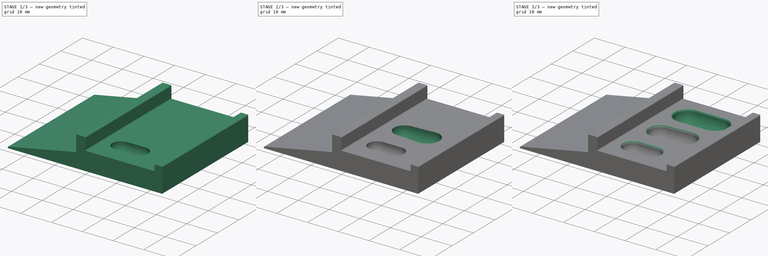
[diagram: build sequence overview — one tinted view per stage of 3, left to right]
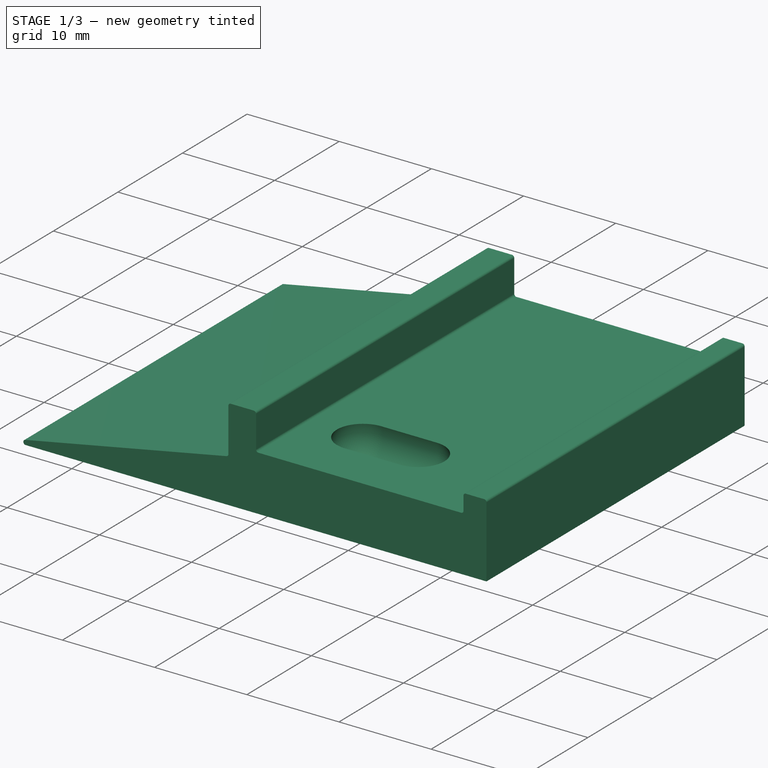
[diagram: stage 1 of 3 — iso view after this stage's code; geometry added in this stage tinted green]
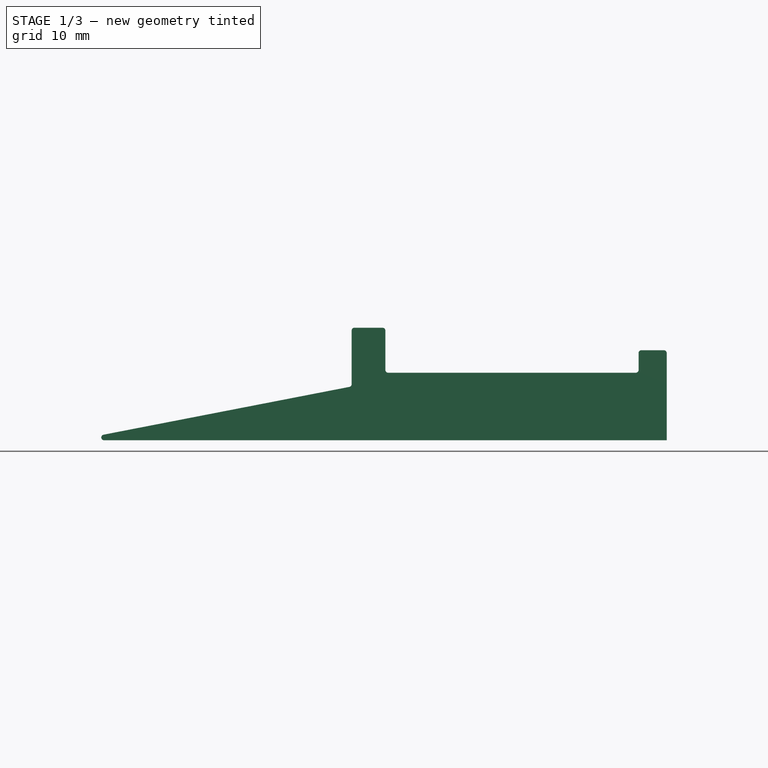
[diagram: stage 1 of 3 — front view after this stage's code; geometry added in this stage tinted green]
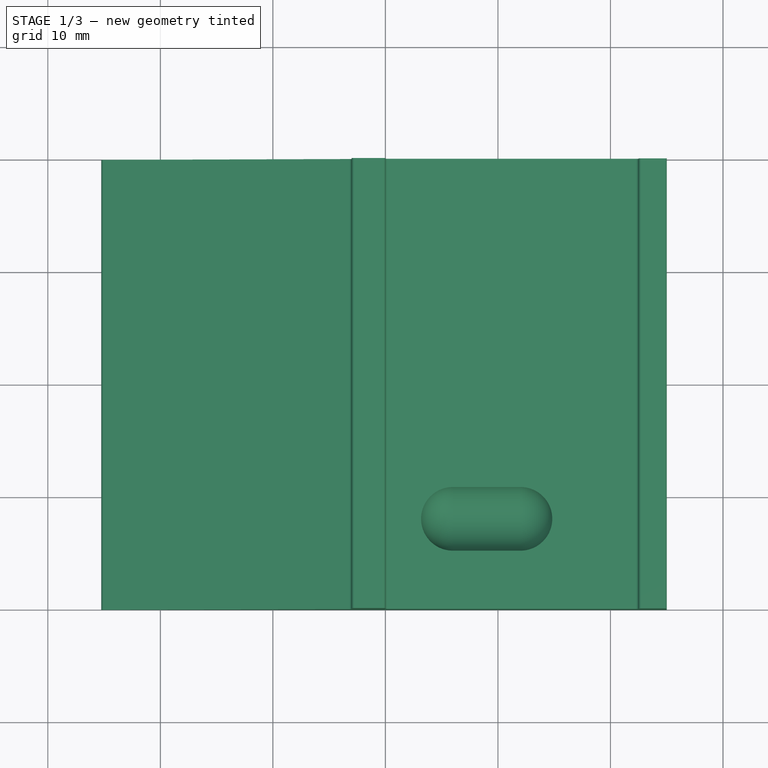
[diagram: stage 1 of 3 — top view after this stage's code; geometry added in this stage tinted green]
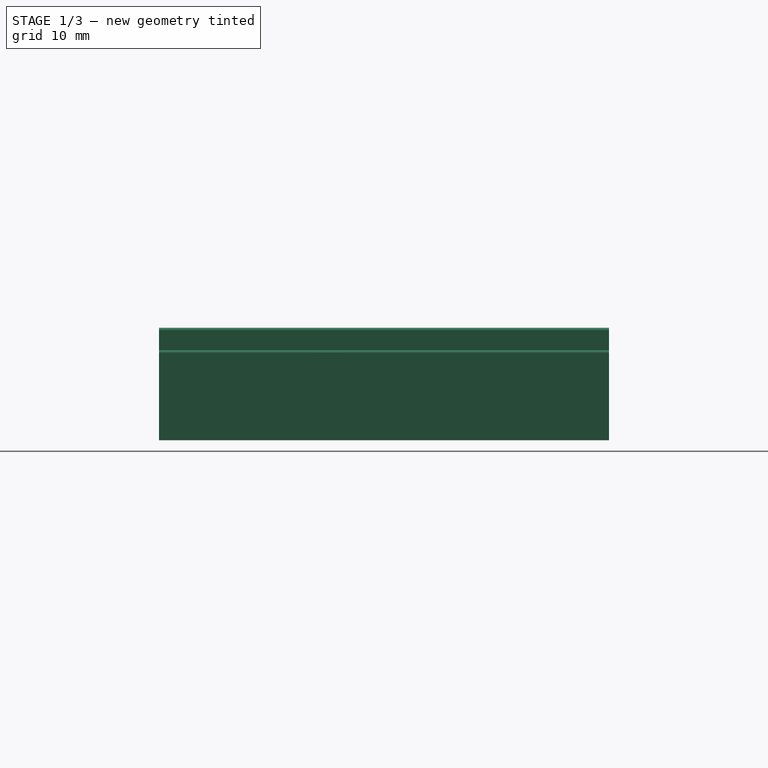
[diagram: stage 1 of 3 — right view after this stage's code; geometry added in this stage tinted green]
FCSTD DOCUMENT  (FreeCAD 1.1R44874 (Git))
Label: Sarcophagus_platform_2
Comment: Sarcophagi in different sizes for different animals. After mounting this directly on a cooling plate (eg a peltier element) it can be used to sort flies on the flat surface and then move them to the s... (+121 chars)
License: Creative Commons Attribution-NonCommercial-ShareAlike
LicenseURL: http://creativecommons.org/licenses/by-nc-sa/4.0/
objects: Sketcher::SketchObject×4, PartDesign::Line×3, PartDesign::Groove×3, App::Point×2, PartDesign::Pad×1, Spreadsheet::Sheet×1, PartDesign::Plane×1, PartDesign::Fillet×1, PartDesign::Body×1, App::Part×1, App::DocumentObjectGroup×1
note: 28 computed .brp shape members not serialized (recipe doc carries the construction recipe); baked Part::Feature solids carry a one-line shape summary decoded from their .brp

FEATURE [Sketcher::SketchObject] Sketch
  ArcFitTolerance = 0
  AttachmentSupport = -> [XZ_Plane]
  ExternalTypes = [0]
  FullyConstrained = true
  MakeInternals = false
  MapMode = 5
  Placement = pos=(0,0,0) rot=(1,0,0;1.5708rad)
  _ExternalGeoVersion = 0
  expr: Constraints[12] = <<Definition>>.length
  expr: Constraints[33] = <<Definition>>.thickness
  sketch-geometry (17):
    g0: LineSegment StartX=25 StartY=0 StartZ=0 EndX=-25 EndY=0 EndZ=0
    g1: LineSegment StartX=-25.0477 StartY=0.495407 StartZ=0 EndX=-3.2023 EndY=4.74172 EndZ=0
    g2: LineSegment StartX=-3 StartY=4.98713 StartZ=0 EndX=-3 EndY=9.75 EndZ=0
    g3: LineSegment StartX=-2.75 StartY=10 StartZ=0 EndX=-0.25 EndY=10 EndZ=0
    g4: LineSegment StartX=0 StartY=9.75 StartZ=0 EndX=0 EndY=6.25 EndZ=0
    g5: LineSegment StartX=0.25 StartY=6 StartZ=0 EndX=22.25 EndY=6 EndZ=0
    g6: LineSegment StartX=22.5 StartY=6.25 StartZ=0 EndX=22.5 EndY=7.75 EndZ=0
    g7: LineSegment StartX=22.75 StartY=8 StartZ=0 EndX=24.75 EndY=8 EndZ=0
    g8: LineSegment StartX=25 StartY=7.75 StartZ=0 EndX=25 EndY=0 EndZ=0
    g9: ArcOfCircle CenterX=-25 CenterY=0.25 CenterZ=0 NormalX=0 NormalY=0 NormalZ=1 AngleXU=0 Radius=0.25 StartAngle=1.76278 EndAngle=4.71239
    g10: ArcOfCircle CenterX=-3.25 CenterY=4.98713 CenterZ=0 NormalX=0 NormalY=0 NormalZ=1 AngleXU=0 Radius=0.25 StartAngle=4.90438 EndAngle=6.28319
    g11: ArcOfCircle CenterX=-2.75 CenterY=9.75 CenterZ=0 NormalX=0 NormalY=0 NormalZ=1 AngleXU=0 Radius=0.25 StartAngle=1.5708 EndAngle=3.14159
    g12: ArcOfCircle CenterX=-0.25 CenterY=9.75 CenterZ=0 NormalX=0 NormalY=0 NormalZ=1 AngleXU=0 Radius=0.25 StartAngle=1e-15 EndAngle=1.5708
    g13: ArcOfCircle CenterX=0.25 CenterY=6.25 CenterZ=0 NormalX=0 NormalY=0 NormalZ=1 AngleXU=0 Radius=0.25 StartAngle=3.14159 EndAngle=4.71239
    g14: ArcOfCircle CenterX=22.25 CenterY=6.25 CenterZ=0 NormalX=0 NormalY=0 NormalZ=1 AngleXU=0 Radius=0.25 StartAngle=4.71239 EndAngle=6.28319
    g15: ArcOfCircle CenterX=22.75 CenterY=7.75 CenterZ=0 NormalX=0 NormalY=0 NormalZ=1 AngleXU=0 Radius=0.25 StartAngle=1.5708 EndAngle=3.14159
    g16: ArcOfCircle CenterX=24.75 CenterY=7.75 CenterZ=0 NormalX=0 NormalY=0 NormalZ=1 AngleXU=0 Radius=0.25 StartAngle=9e-16 EndAngle=1.5708
  constraints (43):
    c: PointOnObject(g0,g-1)
    c: Vertical(g2)
    c: Horizontal(g3)
    c: Vertical(g4)
    c: Horizontal(g5)
    c: Vertical(g6)
    c: Horizontal(g7)
    c: Coincident(g8,g0)
    c: Vertical(g8)
    c: Tangent(g1,g9) = 1.5708
    c: Tangent(g0,g9) = 1.5708
    c: Diameter(g9) = 0.5
    c: DistanceX(g0,g0) = 50
    c: Tangent(g1,g10) = -1.5708
    c: Tangent(g2,g10) = -1.5708
    c: Diameter(g10) = 0.5
    c: Angle(g1) = 0.191986
    c: Tangent(g2,g11) = 1.5708
    c: Tangent(g3,g11) = 1.5708
    c: Tangent(g3,g12) = 1.5708
    c: Tangent(g4,g12) = 1.5708
    c: DistanceX(g2,g4) = 3
    c: Tangent(g4,g13) = -1.5708
    c: Tangent(g5,g13) = -1.5708
    c: DistanceY(g5,g3) = 4
    c: Tangent(g5,g14) = -1.5708
    c: Tangent(g6,g14) = -1.5708
    c: Tangent(g6,g15) = 1.5708
    c: Tangent(g7,g15) = 1.5708
    c: Tangent(g7,g16) = 1.5708
    c: Tangent(g8,g16) = 1.5708
    c: DistanceX(g6,g8) = 2.5
    c: DistanceY(g5,g7) = 2
    c: DistanceY(g0,g5) = 6
    c: Vertical(g4,g-1)
    c: Diameter(g11) = 0.5
    c: Diameter(g12) = 0.5
    c: Diameter(g13) = 0.5
    c: Diameter(g14) = 0.5
    c: Equal(g15,g16)
    c: Diameter(g15) = 0.5
    c: DistanceX(g-1,g0) = 25
    c: PointOnObject(g0,g-1)
FEATURE [PartDesign::Pad] Pad
  Direction = (0,-1,-2e-16)
  Length = 40
  Length2 = 100
  Placement = pos=(0,0,0) rot=(1,0,0;1.5708rad)
  Profile = -> Sketch
  ReferenceAxis = -> Sketch [N_Axis]
  SideType = 2
  Suppressed = false
  Type = 0
  Type2 = 0
  expr: Length = <<Definition>>.width
FEATURE [Spreadsheet::Sheet] Spreadsheet  label="Definition"
  cells = A1='Thickness; B1(thickness)=6; A2='Width; B2(width)=40; A3='Length; B3(length)=50; A4='Sarcophagus 1 length; B4(sarcophagus01_length)=12; A5='Sarcophagus 1 width; B5(sarcophagus01_width)=6; A6='Sarcophagus 2 length; B6(sarcophagus2_length)=15; A7='Sarcophagus 2 upper width; B7(sarcophagus2_uwidth)=7; A8='Sarcophagus 2 lower width; B8(sarcophagus2_lwidth)=8; A9='Sarcophagus 3 length; B9(sarcophagus3_length)=17; A10='Sarcophagus 3 width; B10(sarcophagus3_width)=8; A12='Version; B12=0.2
FEATURE [PartDesign::Plane] DatumPlane  label="Sarcophagi_plane"
  AttachmentOffset = pos=(0,0,5) rot=(0,0,1;0rad)
  AttachmentSupport = -> [XY_Plane]
  Length = 60.2737
  MapMode = 5
  Placement = pos=(0,0,5) rot=(0,0,1;0rad)
  ResizeMode = 0
  Width = 60.0249
  expr: .AttachmentOffset.Base.z = <<Definition>>.thickness - 1
FEATURE [Sketcher::SketchObject] Sketch001  label="Sarcophagus01_sketch"
  ArcFitTolerance = 0
  AttachmentSupport = -> [DatumPlane]
  ExternalTypes = [0]
  FullyConstrained = true
  MakeInternals = false
  MapMode = 5
  Placement = pos=(0,0,5) rot=(0,0,1;0rad)
  _ExternalGeoVersion = 0
  expr: Constraints[11] = <<Definition>>.width / 4 + 2
  expr: Constraints[8] = Spreadsheet.sarcophagus01_length
  expr: Constraints[9] = Spreadsheet.sarcophagus01_width / 2
  sketch-geometry (4):
    g0: LineSegment StartX=12 StartY=-9 StartZ=0 EndX=6 EndY=-9 EndZ=0
    g1: ArcOfCircle CenterX=12 CenterY=-12 CenterZ=0 NormalX=0 NormalY=0 NormalZ=1 AngleXU=0 Radius=3 StartAngle=0 EndAngle=1.5708
    g2: ArcOfCircle CenterX=6 CenterY=-12 CenterZ=0 NormalX=0 NormalY=0 NormalZ=1 AngleXU=0 Radius=3 StartAngle=1.5708 EndAngle=3.14159
    g3: LineSegment StartX=3 StartY=-12 StartZ=0 EndX=15 EndY=-12 EndZ=0
  constraints (12):
    c: Tangent(g1,g0) = -1.5708
    c: Tangent(g0,g2) = -1.5708
    c: Coincident(g3,g2)
    c: Coincident(g3,g1)
    c: Horizontal(g3)
    c: PointOnObject(g1,g3)
    c: PointOnObject(g2,g3)
    c: Parallel(g0,g3)
    c: Distance(g2,g1) = 12
    c: Distance(g0,g2) = 3
    c: DistanceX(g-1,g2) = 3
    c: DistanceY(g2,g-1) = 12
FEATURE [PartDesign::Line] DatumLine001  label="Sarcophagus01_center"
  AttacherType = Attacher::AttachEngineLine
  AttachmentSupport = -> [Sketch001]
  Length = 20
  MapMode = 29
  Placement = pos=(0,-12,5) rot=(0.57735,0.57735,0.57735;2.0944rad)
  ResizeMode = 0
FEATURE [PartDesign::Groove] Groove  label="Sarcophagus01"
  Angle = 360
  Angle2 = 0
  Axis = (1,0,0)
  Base = (0,-12,5)
  BaseFeature = -> Pad
  Placement = pos=(0,0,0) rot=(1,0,0;1.5708rad)
  Profile = -> Sketch001
  ReferenceAxis = -> DatumLine001
  Suppressed = false
  Type = 0
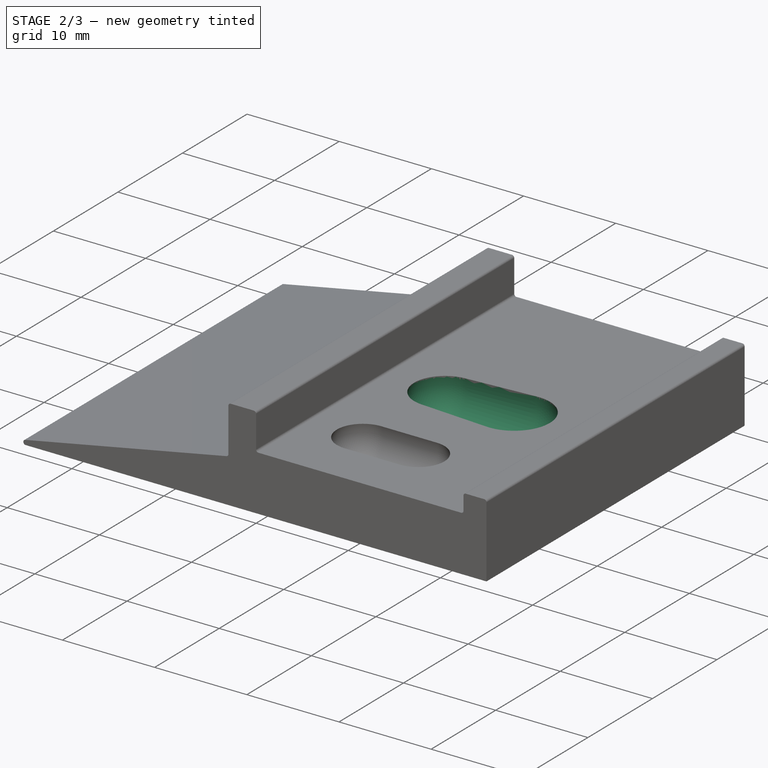
[diagram: stage 2 of 3 — iso view after this stage's code; geometry added in this stage tinted green]
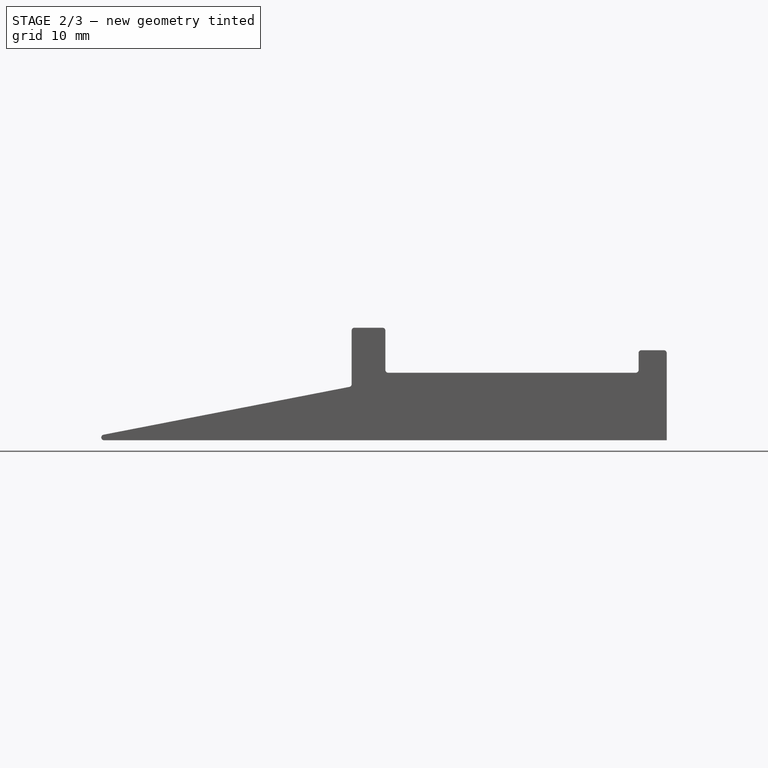
[diagram: stage 2 of 3 — front view after this stage's code; geometry added in this stage tinted green]
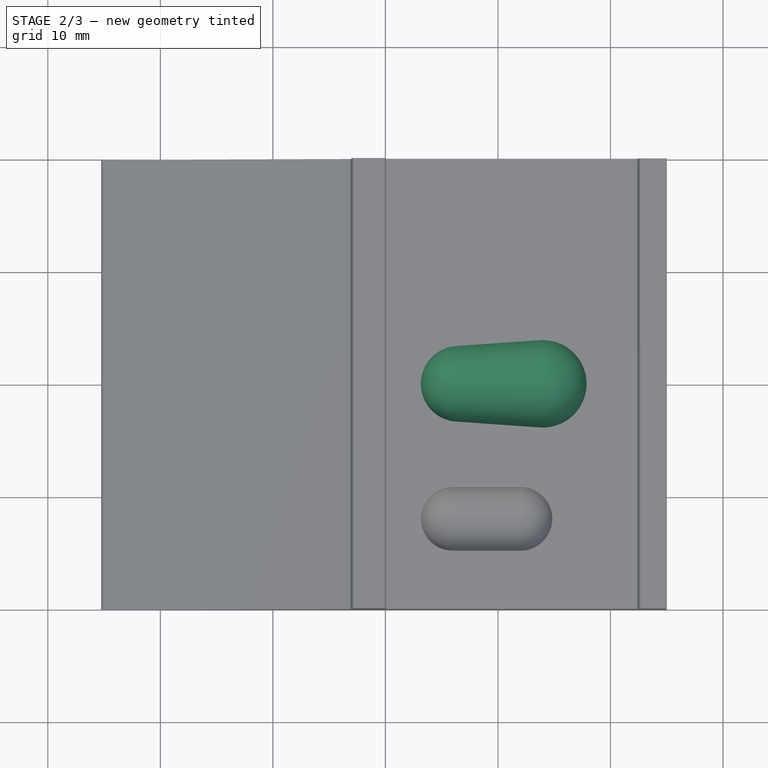
[diagram: stage 2 of 3 — top view after this stage's code; geometry added in this stage tinted green]
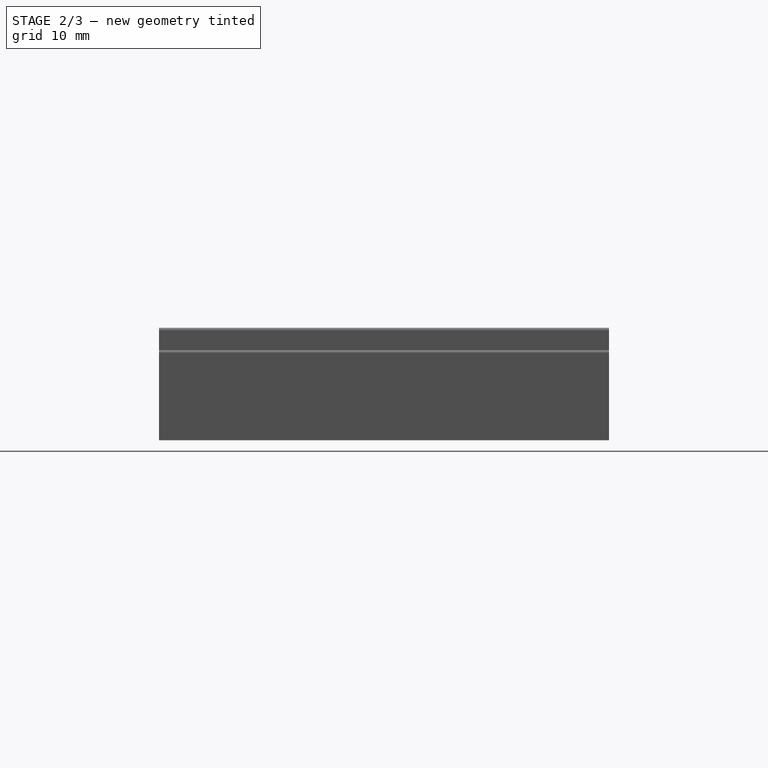
[diagram: stage 2 of 3 — right view after this stage's code; geometry added in this stage tinted green]
FEATURE [Sketcher::SketchObject] Sketch002  label="Sarcophagus02_sketch"
  ArcFitTolerance = 0
  AttachmentSupport = -> [DatumPlane]
  ExternalTypes = [0]
  FullyConstrained = true
  MakeInternals = false
  MapMode = 5
  Placement = pos=(0,0,5) rot=(0,0,1;0rad)
  _ExternalGeoVersion = 0
  expr: Constraints[7] = <<Definition>>.sarcophagus2_uwidth / 2
  expr: Constraints[8] = <<Definition>>.sarcophagus2_lwidth / 2
  expr: Constraints[9] = <<Definition>>.sarcophagus2_length
  sketch-geometry (4):
    g0: LineSegment StartX=13.7225 StartY=4 StartZ=0 EndX=6.27296 EndY=3.5 EndZ=0
    g1: ArcOfCircle CenterX=6.50787 CenterY=0 CenterZ=0 NormalX=0 NormalY=0 NormalZ=1 AngleXU=0 Radius=3.50787 StartAngle=1.63781 EndAngle=3.14159
    g2: ArcOfCircle CenterX=13.991 CenterY=0 CenterZ=0 NormalX=0 NormalY=0 NormalZ=1 AngleXU=0 Radius=4.009 StartAngle=9.1535e-12 EndAngle=1.63781
    g3: LineSegment StartX=3 StartY=7.404e-13 StartZ=0 EndX=18 EndY=7.404e-13 EndZ=0
  constraints (12):
    c: Tangent(g2,g0) = -1.5708
    c: Tangent(g0,g1) = -1.5708
    c: Coincident(g3,g1)
    c: Coincident(g3,g2)
    c: Horizontal(g3)
    c: PointOnObject(g2,g3)
    c: PointOnObject(g1,g3)
    c: DistanceY(g1,g0) = 3.5
    c: DistanceY(g2,g0) = 4
    c: Distance(g2,g1) = 15
    c: PointOnObject(g1,g-1)
    c: DistanceX(g-1,g1) = 3
FEATURE [PartDesign::Line] DatumLine  label="Sarcophagus02_center"
  AttacherType = Attacher::AttachEngineLine
  AttachmentSupport = -> [Sketch002]
  Length = 20
  MapMode = 29
  Placement = pos=(0,7.404e-13,5) rot=(0.57735,0.57735,0.57735;2.0944rad)
  ResizeMode = 0
FEATURE [PartDesign::Groove] Groove001  label="Sarcophagus02"
  Angle = 360
  Angle2 = 0
  Axis = (1,0,0)
  Base = (0,7.404e-13,5)
  BaseFeature = -> Groove
  Placement = pos=(0,0,0) rot=(1,0,0;1.5708rad)
  Profile = -> Sketch002
  ReferenceAxis = -> DatumLine
  Suppressed = false
  Type = 0
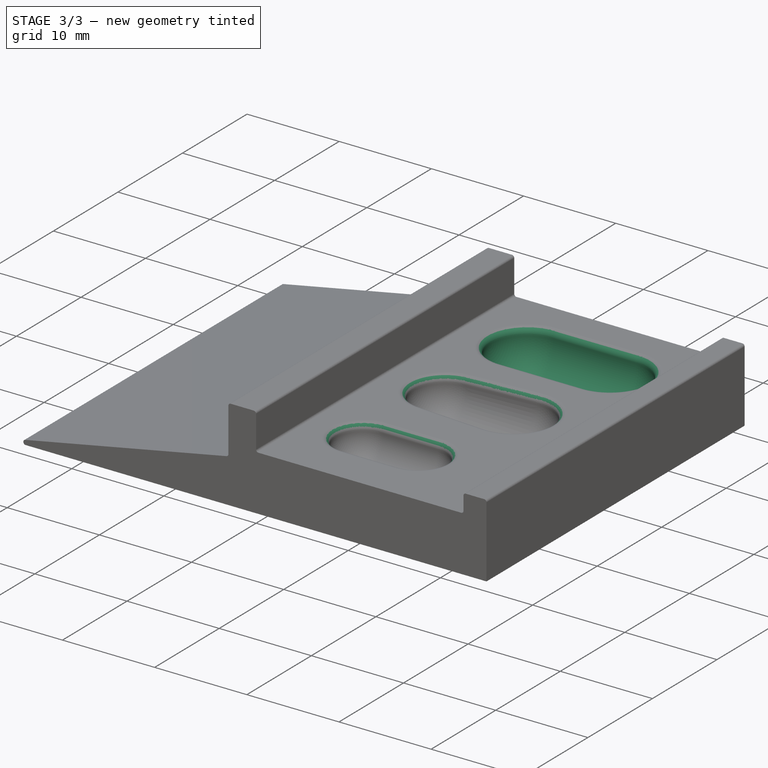
[diagram: stage 3 of 3 — iso view after this stage's code; geometry added in this stage tinted green]
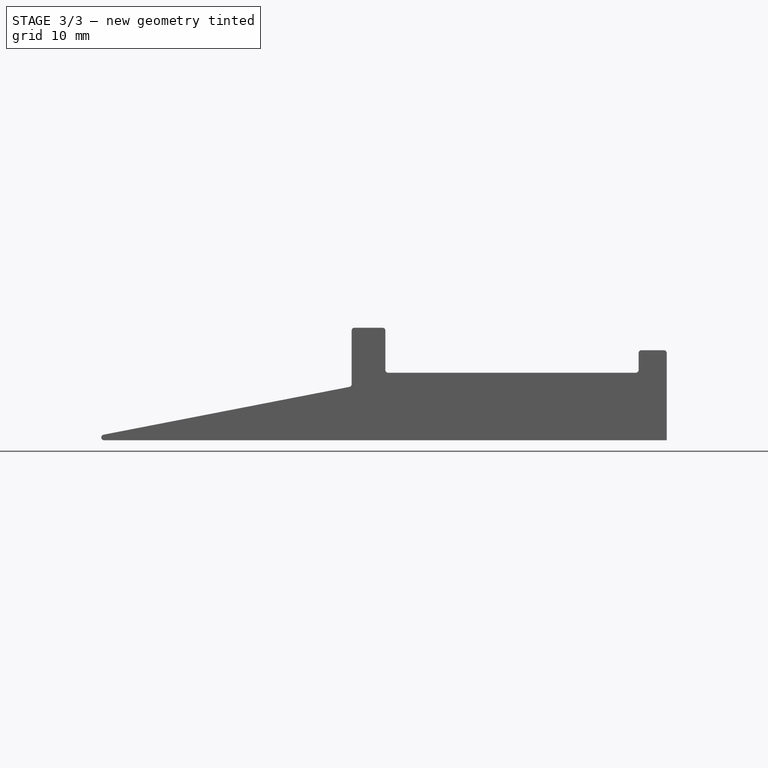
[diagram: stage 3 of 3 — front view after this stage's code; geometry added in this stage tinted green]
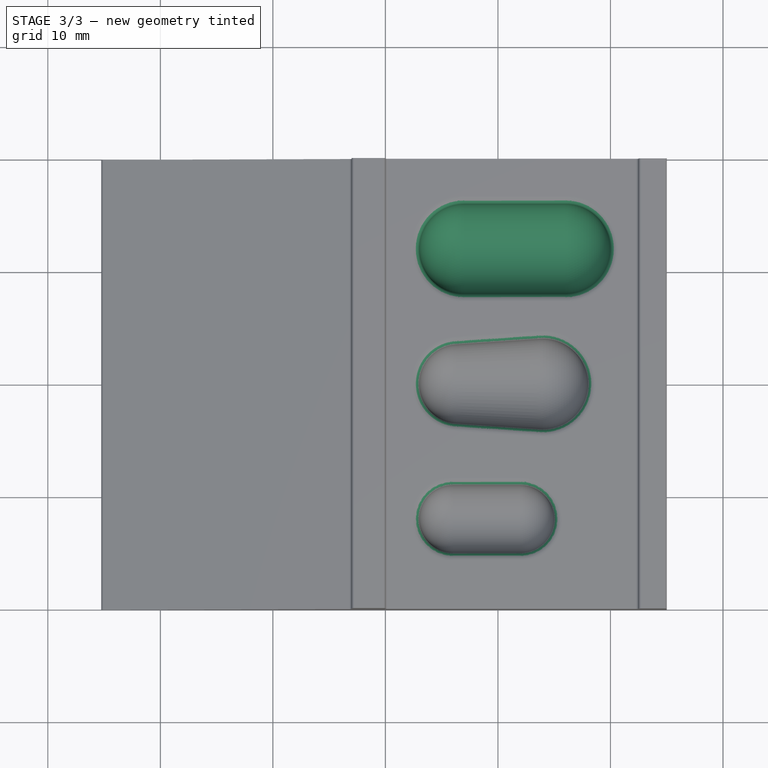
[diagram: stage 3 of 3 — top view after this stage's code; geometry added in this stage tinted green]
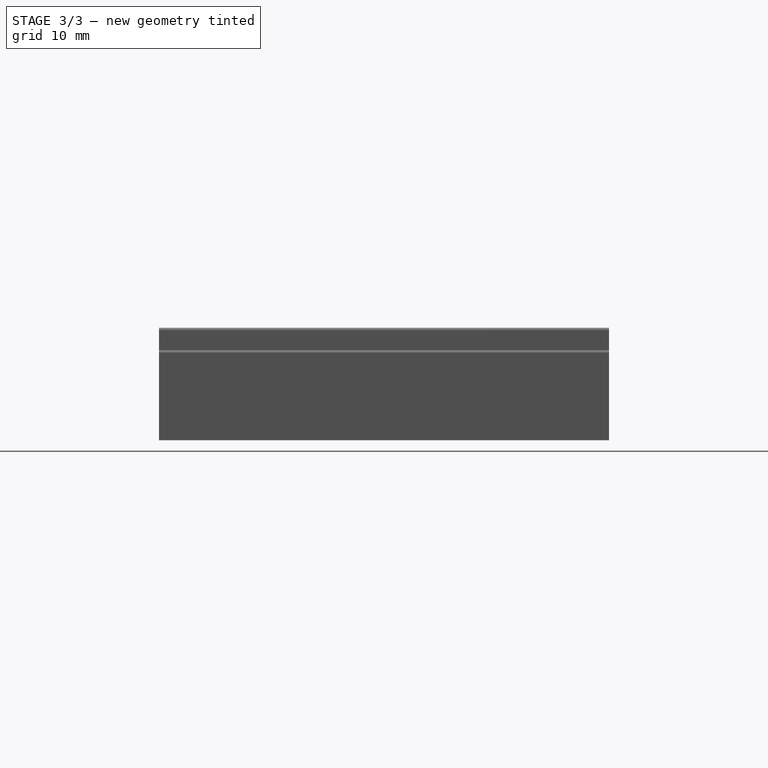
[diagram: stage 3 of 3 — right view after this stage's code; geometry added in this stage tinted green]
FEATURE [Sketcher::SketchObject] Sketch003  label="Sarcophagus03_sketch"
  ArcFitTolerance = 0
  AttachmentSupport = -> [DatumPlane]
  ExternalTypes = [0]
  FullyConstrained = true
  MakeInternals = false
  MapMode = 5
  Placement = pos=(0,0,5) rot=(0,0,1;0rad)
  _ExternalGeoVersion = 0
  expr: Constraints[10] = <<Definition>>.width / 4 + 2
  expr: Constraints[7] = <<Definition>>.sarcophagus3_length
  expr: Constraints[9] = <<Definition>>.sarcophagus3_width / 2
  sketch-geometry (4):
    g0: LineSegment StartX=16 StartY=16 StartZ=0 EndX=7 EndY=16 EndZ=0
    g1: ArcOfCircle CenterX=7 CenterY=12 CenterZ=0 NormalX=0 NormalY=0 NormalZ=1 AngleXU=0 Radius=4 StartAngle=1.5708 EndAngle=3.14159
    g2: ArcOfCircle CenterX=16 CenterY=12 CenterZ=0 NormalX=0 NormalY=0 NormalZ=1 AngleXU=0 Radius=4 StartAngle=0 EndAngle=1.5708
    g3: LineSegment StartX=3 StartY=12 StartZ=0 EndX=20 EndY=12 EndZ=0
  constraints (12):
    c: Tangent(g2,g0) = -1.5708
    c: Tangent(g0,g1) = -1.5708
    c: Coincident(g3,g1)
    c: Coincident(g3,g2)
    c: Horizontal(g3)
    c: PointOnObject(g2,g3)
    c: PointOnObject(g1,g3)
    c: Distance(g1,g2) = 17
    c: Parallel(g0,g3)
    c: DistanceY(g1,g0) = 4
    c: DistanceY(g-1,g1) = 12
    c: DistanceX(g-1,g1) = 3
FEATURE [PartDesign::Line] DatumLine002  label="Sarcophagus03_center"
  AttacherType = Attacher::AttachEngineLine
  AttachmentSupport = -> [Sketch003]
  Length = 20
  MapMode = 29
  Placement = pos=(0,12,5) rot=(0.57735,0.57735,0.57735;2.0944rad)
  ResizeMode = 0
FEATURE [PartDesign::Groove] Groove002  label="Sarcophagus03"
  Angle = 360
  Angle2 = 0
  Axis = (1,0,0)
  Base = (0,12,5)
  BaseFeature = -> Groove001
  Placement = pos=(0,0,0) rot=(1,0,0;1.5708rad)
  Profile = -> Sketch003
  ReferenceAxis = -> DatumLine002
  Suppressed = false
  Type = 0
FEATURE [PartDesign::Fillet] Fillet
  Base = -> Groove002 [Edge53,Edge51,Edge50,Edge52,Edge57,Edge55,Edge54,Edge56,Edge60,Edge61,Edge58,Edge59]
  BaseFeature = -> Groove002
  Placement = pos=(0,0,0) rot=(1,0,0;1.5708rad)
  Radius = 0.7
  SupportTransform = false
  Suppressed = false
  UseAllEdges = false
FEATURE [PartDesign::Body] Body  label="OuterLayer"
  AllowCompound = true
  Group = -> [Sketch,Pad,DatumPlane,Sketch001,DatumLine001,Groove,Sketch002,DatumLine,Groove001,Sketch003,DatumLine002,Groove002,Fillet]
  Origin = -> Origin
  Tip = -> Fillet
FEATURE [App::Part] Tether_Platform
  Group = -> [Body]
  Origin = -> Origin003
FEATURE [App::DocumentObjectGroup] Parts
  Group = -> [Tether_Platform]
FEATURE [App::Point] Origin004  label="Origin"
  Role = Origin
FEATURE [App::Point] Origin005  label="Origin"
  Role = Origin
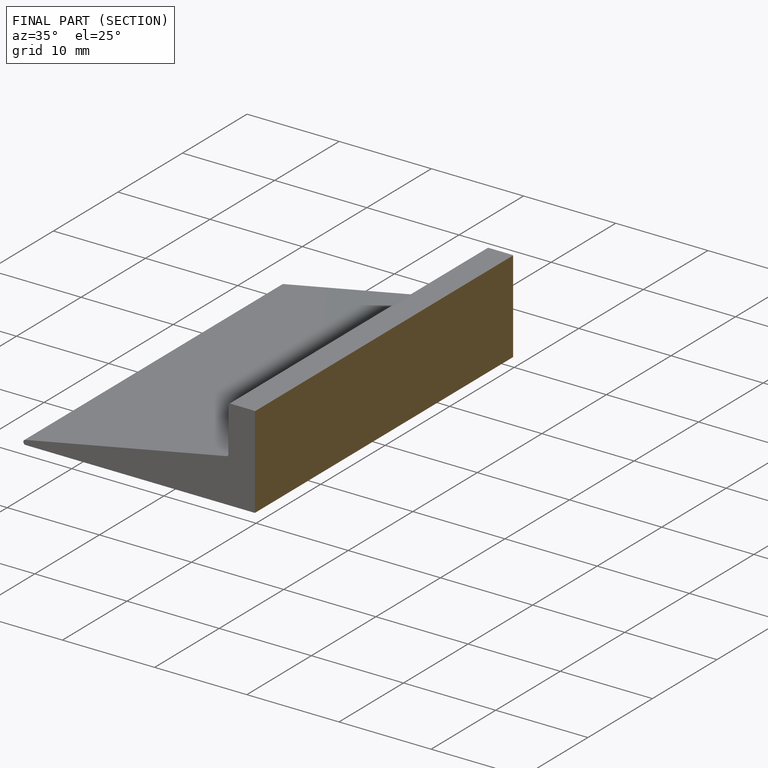
[diagram: finished part — half-section view (interior)]
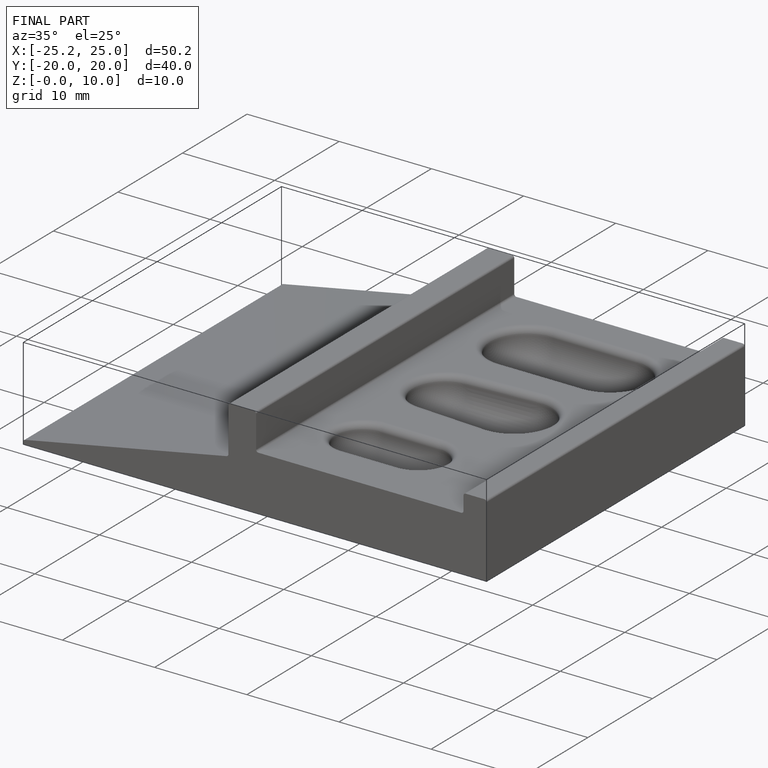
[diagram: finished part — iso view with bounding-box wireframe]
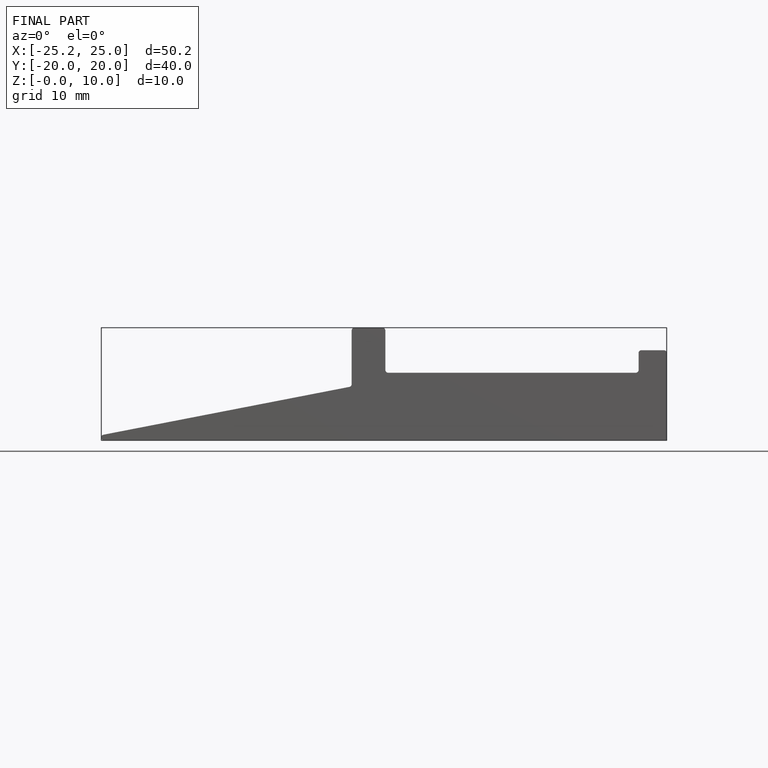
[diagram: finished part — front view with bounding-box wireframe]
